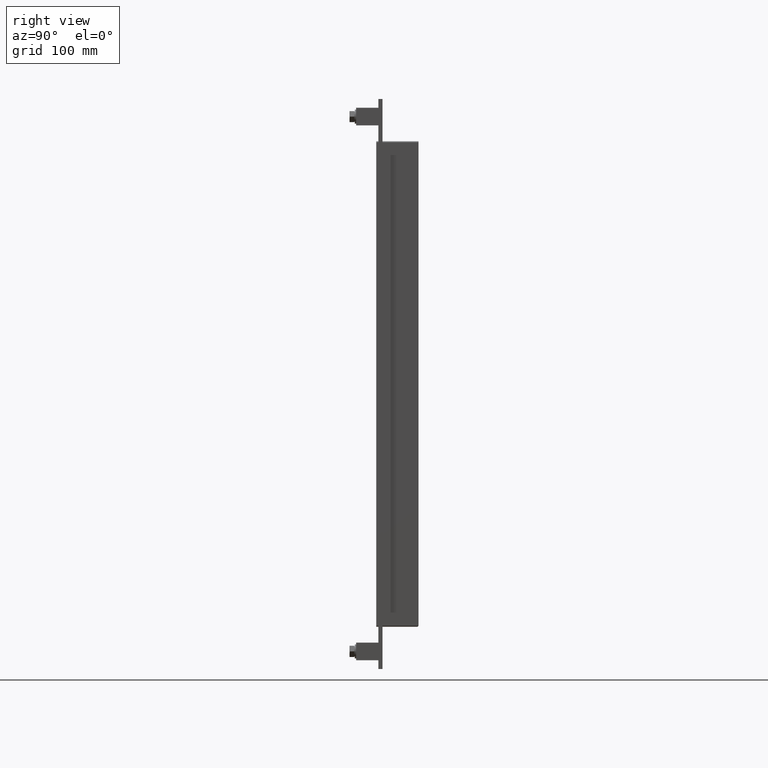
[diagram: clean part render]
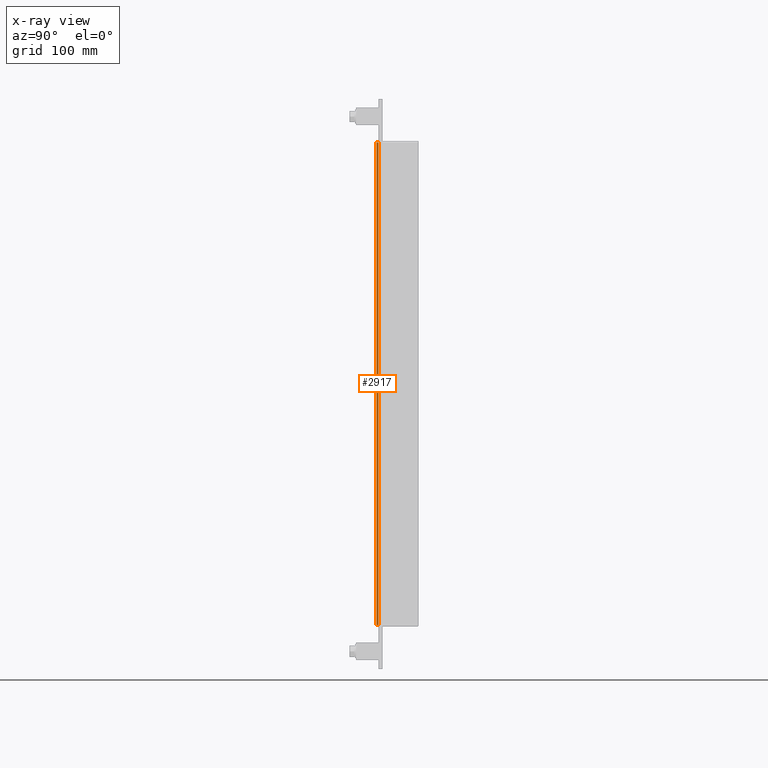
[diagram: x-ray — body ghosted, one internal face saturated and labeled with its STEP entity id]
A machine part, right view, then the same camera in x-ray: the body is ghosted and one INTERNAL B-rep face — a face not visible from any outside direction — is saturated and labeled: STEP entity #2917.
In plain terms, the highlighted planar face has unit normal (-1, 0, 0).
Its self-contained STEP definition (entity closure, byte-faithful):
#1818=CARTESIAN_POINT('',(-262.0,-3.0,-343.00000000000006));
#1819=VERTEX_POINT('',#1818);
#1869=CARTESIAN_POINT('',(-262.0,-3.0,343.00000000000006));
#1870=VERTEX_POINT('',#1869);
#1878=CARTESIAN_POINT('',(-262.0,-3.0,343.00000000000006));
#1879=DIRECTION('',(0.0,0.0,-1.0));
#1880=VECTOR('',#1879,686.0);
#1881=LINE('',#1878,#1880);
#1882=EDGE_CURVE('',#1870,#1819,#1881,.T.);
#2585=CARTESIAN_POINT('',(-262.0,0.0,343.00000000000006));
#2586=VERTEX_POINT('',#2585);
#2636=CARTESIAN_POINT('',(-262.0,0.0,-343.00000000000006));
#2637=VERTEX_POINT('',#2636);
#2645=CARTESIAN_POINT('',(-262.0,0.0,343.00000000000011));
#2646=DIRECTION('',(0.0,0.0,-1.0));
#2647=VECTOR('',#2646,686.00000000000011);
#2648=LINE('',#2645,#2647);
#2649=EDGE_CURVE('',#2586,#2637,#2648,.T.);
#2852=CARTESIAN_POINT('',(-262.0,-3.0,-343.00000000000006));
#2853=DIRECTION('',(0.0,1.0,0.0));
#2854=VECTOR('',#2853,3.0);
#2855=LINE('',#2852,#2854);
#2856=EDGE_CURVE('',#1819,#2637,#2855,.T.);
#2901=CARTESIAN_POINT('',(-262.0,0.0,-345.00000000000006));
#2902=DIRECTION('',(-1.0,0.0,0.0));
#2903=DIRECTION('',(0.0,0.0,1.0));
#2904=AXIS2_PLACEMENT_3D('',#2901,#2902,#2903);
#2905=PLANE('',#2904);
#2906=ORIENTED_EDGE('',*,*,#2649,.T.);
#2907=ORIENTED_EDGE('',*,*,#2856,.F.);
#2908=ORIENTED_EDGE('',*,*,#1882,.F.);
#2909=CARTESIAN_POINT('',(-262.0,0.0,343.00000000000006));
#2910=DIRECTION('',(0.0,-1.0,0.0));
#2911=VECTOR('',#2910,3.0);
#2912=LINE('',#2909,#2911);
#2913=EDGE_CURVE('',#2586,#1870,#2912,.T.);
#2914=ORIENTED_EDGE('',*,*,#2913,.F.);
#2915=EDGE_LOOP('',(#2906,#2907,#2908,#2914));
#2916=FACE_OUTER_BOUND('',#2915,.T.);
#2917=ADVANCED_FACE('',(#2916),#2905,.T.);